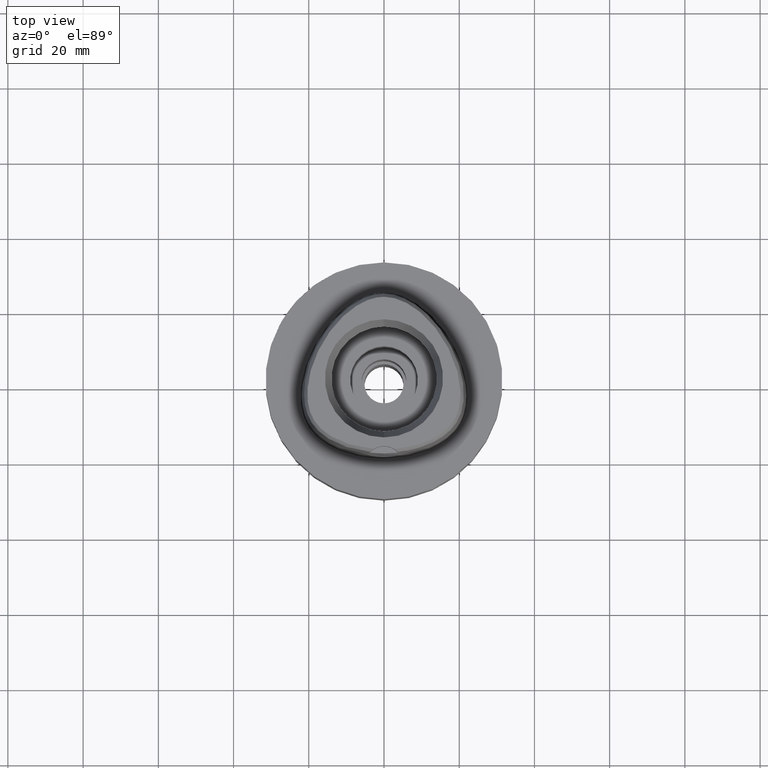
[diagram: clean part render]
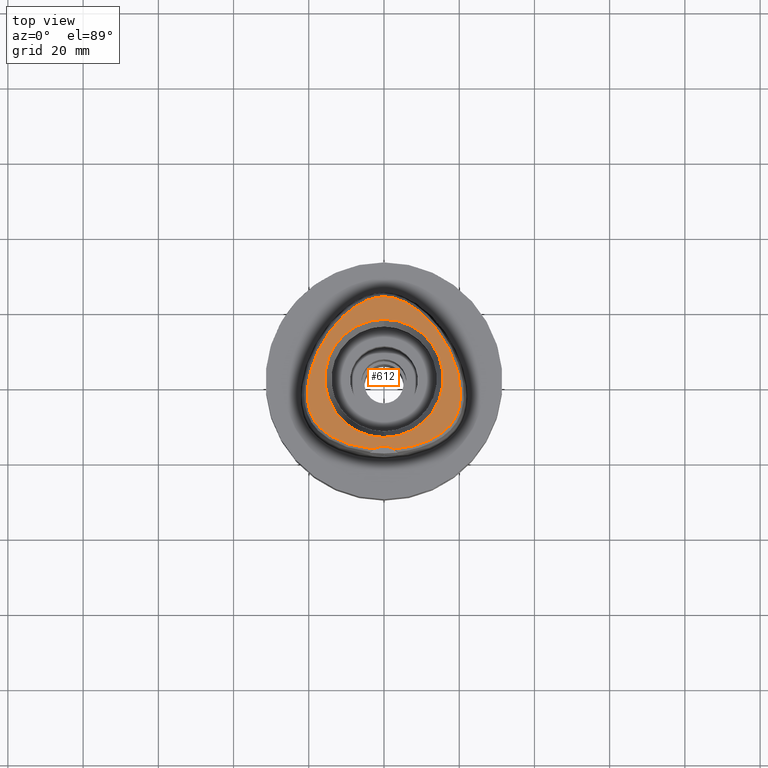
[diagram: same view with one face highlighted and labeled with its STEP entity id]
A machine part, top view. The second image highlights one B-rep face of the part: STEP entity #612.
In plain terms, the highlighted planar face has unit normal (0, 0, 1).
Its self-contained STEP definition (entity closure, byte-faithful):
#41 = CARTESIAN_POINT ( 'NONE',  ( -8.930096025510907864, -17.65000298921759736, 37.99999999999774047 ) ) ;
#67 = CARTESIAN_POINT ( 'NONE',  ( -2.682279906006999948, -18.78035848609999903, 38.00000000000000000 ) ) ;
#96 = CARTESIAN_POINT ( 'NONE',  ( -15.24692477332538765, 11.25717358966142179, 38.00000000000679989 ) ) ;
#122 = CARTESIAN_POINT ( 'NONE',  ( -14.21001600787791652, -15.34519100085744725, 37.99999999999474909 ) ) ;
#131 = CARTESIAN_POINT ( 'NONE',  ( 0.6513209347955690731, 21.67370899611406543, 37.99999999999813127 ) ) ;
#144 = CARTESIAN_POINT ( 'NONE',  ( -18.99520880204494944, -10.46968343926139866, 38.00000000000069633 ) ) ;
#161 = CARTESIAN_POINT ( 'NONE',  ( 15.72078707640431716, -14.29615620309154167, 37.99999999999916156 ) ) ;
#175 = VERTEX_POINT ( 'NONE', #3086 ) ;
#182 = ORIENTED_EDGE ( 'NONE', *, *, #945, .F. ) ;
#190 = CARTESIAN_POINT ( 'NONE',  ( 18.99619228226731593, -10.46780014453539209, 37.99999999999923972 ) ) ;
#211 = CARTESIAN_POINT ( 'NONE',  ( 15.00628712263350373, -14.82385870794631266, 37.99999999999515410 ) ) ;
#236 = CARTESIAN_POINT ( 'NONE',  ( 14.21382211799156892, -15.34284287400479130, 37.99999999999326405 ) ) ;
#314 = AXIS2_PLACEMENT_3D ( 'NONE', #3406, #3433, #1494 ) ;
#356 = FACE_OUTER_BOUND ( 'NONE', #462, .T. ) ;
#369 = DIRECTION ( 'NONE',  ( 0.0000000000000000000, 0.0000000000000000000, 1.000000000000000000 ) ) ;
#438 = CARTESIAN_POINT ( 'NONE',  ( 10.48999540691274568, 16.86597469869752075, 38.00000000000341771 ) ) ;
#450 = CARTESIAN_POINT ( 'NONE',  ( -20.16012968311642339, -1.009698174524109371, 37.99999999999744915 ) ) ;
#462 = EDGE_LOOP ( 'NONE', ( #2656, #182, #3634 ) ) ;
#478 = CARTESIAN_POINT ( 'NONE',  ( -18.79649882724811860, 4.256255933891740284, 37.99999999999412381 ) ) ;
#506 = CARTESIAN_POINT ( 'NONE',  ( -17.91005512244085196, -12.13778127739600166, 37.99999999999760547 ) ) ;
#517 = CARTESIAN_POINT ( 'NONE',  ( 4.255661039972609139, 20.86618068829729822, 37.99999999999337774 ) ) ;
#532 = CARTESIAN_POINT ( 'NONE',  ( -3.522896839653742784, -18.70811514173632517, 37.99999999999671729 ) ) ;
#599 = CARTESIAN_POINT ( 'NONE',  ( 11.32341394162606996, -16.80569392800739692, 37.99999999999507594 ) ) ;
#612 = ADVANCED_FACE ( 'NONE', ( #356, #2665 ), #2592, .T. ) ;
#620 = CARTESIAN_POINT ( 'NONE',  ( -3.470663397110000031E-11, 21.68728795390000030, 38.00000000000000000 ) ) ;
#625 = CARTESIAN_POINT ( 'NONE',  ( 13.33890749495805395, -15.84912955619534003, 37.99999999999752021 ) ) ;
#667 = B_SPLINE_CURVE_WITH_KNOTS ( 'NONE', 3,
 ( #3207, #4768, #131, #2819, #2436, #4718, #3951, #517, #3616, #4377, #4001, #4409, #1675, #2847, #438, #922, #4826, #2472, #4027, #1330, #4901, #999, #4483, #2983, #2169, #1433, #2621, #4179, #4853, #3722, #971, #2573, #4130, #4457, #3003, #4534, #3337, #2927, #1356, #190, #3316, #2551, #1754, #2144, #4110, #4876, #161, #211, #236, #625, #4559, #599, #4930, #674, #1777, #1831, #1408, #4952, #2958, #1377 ),
 .UNSPECIFIED., .F., .F.,
 ( 4, 1, 1, 1, 1, 1, 1, 1, 1, 1, 1, 1, 1, 1, 1, 1, 1, 1, 1, 1, 1, 1, 1, 1, 1, 1, 1, 1, 1, 1, 1, 1, 1, 1, 1, 1, 1, 1, 1, 1, 1, 1, 1, 1, 1, 1, 1, 1, 1, 1, 1, 1, 1, 1, 1, 1, 1, 4 ),
 ( 0.0000000000000000000, 0.01775854187129999318, 0.03551708374169992855, 0.05327562561200005486, 0.07103416748239999023, 0.08879270935270000553, 0.1065512512231000519, 0.1243097930933999562, 0.1420683349638000026, 0.1598268768341000179, 0.1775854187044000332, 0.1953439605747999686, 0.2131025024450999839, 0.2308610443155000302, 0.2486195861857999345, 0.2663781280563000120, 0.2841366699266000273, 0.3018952117970000737, 0.3196537536672999780, 0.3374122955377000244, 0.3551708374080000397, 0.3729293792782999439, 0.3906879211486999903, 0.4084464630190000056, 0.4262050048894000520, 0.4439635467596999563, 0.4617220886301000027, 0.4794806305004000180, 0.4972391723707999533, 0.5149977142410999686, 0.5327562561113999839, 0.5505147979818000303, 0.5682733398521000456, 0.5860318817224999810, 0.6037904235927999963, 0.6215489654632000427, 0.6393075073334999470, 0.6570660492038999934, 0.6748245910742000087, 0.6925831329445000240, 0.7103416748149000703, 0.7281002166851999746, 0.7458587585556000210, 0.7636173004259000363, 0.7813758422962999717, 0.7991343841665999870, 0.8168929260370000334, 0.8346514679073000487, 0.8524100097776999840, 0.8701685516479999993, 0.8879270935183000146, 0.9056856353886799660, 0.9234441772589799813, 0.9412027191293600437, 0.9589612609997000270, 0.9767198028700500023, 0.9944783447403919840, 1.000000000000000000 ),
 .UNSPECIFIED. ) ;
#674 = CARTESIAN_POINT ( 'NONE',  ( 8.936919536467318181, -17.64796721715026351, 38.00000000000019895 ) ) ;
#839 = EDGE_LOOP ( 'NONE', ( #2942, #3538 ) ) ;
#851 = CARTESIAN_POINT ( 'NONE',  ( -20.30498420086798106, -2.177378896257762264, 38.00000000000550671 ) ) ;
#853 = DIRECTION ( 'NONE',  ( 0.0000000000000000000, 0.0000000000000000000, 1.000000000000000000 ) ) ;
#876 = CARTESIAN_POINT ( 'NONE',  ( -16.36032397153883977, -13.76458520345322789, 38.00000000000412825 ) ) ;
#915 = EDGE_CURVE ( 'NONE', #175, #2252, #994, .T. ) ;
#922 = CARTESIAN_POINT ( 'NONE',  ( 11.46587147800438267, 15.92717600803475442, 37.99999999999905498 ) ) ;
#936 = VERTEX_POINT ( 'NONE', #2401 ) ;
#945 = EDGE_CURVE ( 'NONE', #2252, #5041, #3963, .T. ) ;
#961 = CARTESIAN_POINT ( 'NONE',  ( -9.524337278002324325, 17.70558492631704794, 37.99999999999765521 ) ) ;
#971 = CARTESIAN_POINT ( 'NONE',  ( 20.38292172607920349, -3.276278498261274930, 37.99999999999651834 ) ) ;
#994 = CIRCLE ( 'NONE', #4898, 5.000000000000000888 ) ;
#999 = CARTESIAN_POINT ( 'NONE',  ( 16.88599964843188417, 8.518708218769875273, 38.00000000000067502 ) ) ;
#1060 = CARTESIAN_POINT ( 'NONE',  ( -2.735698246183754456, 21.34559102902478500, 37.99999999999833022 ) ) ;
#1134 = CARTESIAN_POINT ( 'NONE',  ( -2.682279906006999948, -18.78035848609999903, 38.00000000000000000 ) ) ;
#1152 = AXIS2_PLACEMENT_3D ( 'NONE', #2879, #4435, #3336 ) ;
#1239 = CARTESIAN_POINT ( 'NONE',  ( -19.98419490692090150, -7.809898894996082142, 37.99999999999906208 ) ) ;
#1289 = CARTESIAN_POINT ( 'NONE',  ( -12.44116897271565669, 14.89128547410070880, 37.99999999999513278 ) ) ;
#1330 = CARTESIAN_POINT ( 'NONE',  ( 15.24661770199307220, 11.25762885477904440, 37.99999999999738520 ) ) ;
#1356 = CARTESIAN_POINT ( 'NONE',  ( 19.28677546797236886, -9.867757137505909881, 37.99999999999716493 ) ) ;
#1377 = CARTESIAN_POINT ( 'NONE',  ( 2.682287482605000051, -18.78036330228999873, 38.00000000000000000 ) ) ;
#1400 = CIRCLE ( 'NONE', #1152, 15.71487483155999776 ) ;
#1408 = CARTESIAN_POINT ( 'NONE',  ( 4.715576077242170427, -18.56597918135498659, 37.99999999999240430 ) ) ;
#1433 = CARTESIAN_POINT ( 'NONE',  ( 19.26272899268694516, 2.870227893749496051, 37.99999999999587885 ) ) ;
#1457 = CARTESIAN_POINT ( 'NONE',  ( 0.0000000000000000000, -15.71487483155999776, 38.00000000000000000 ) ) ;
#1494 = DIRECTION ( 'NONE',  ( 1.000000000000000000, 0.0000000000000000000, 0.0000000000000000000 ) ) ;
#1541 = DIRECTION ( 'NONE',  ( 0.0000000000000000000, 1.000000000000000000, 0.0000000000000000000 ) ) ;
#1607 = CARTESIAN_POINT ( 'NONE',  ( -12.37132652997405913, -16.34104299087807277, 37.99999999999515410 ) ) ;
#1635 = CARTESIAN_POINT ( 'NONE',  ( -15.71788912669207505, -14.29843101565702490, 37.99999999999398170 ) ) ;
#1665 = CARTESIAN_POINT ( 'NONE',  ( -14.34402387965566206, 12.54761970512417335, 37.99999999999892708 ) ) ;
#1675 = CARTESIAN_POINT ( 'NONE',  ( 8.578848111816640198, 18.44609846599379210, 37.99999999999937472 ) ) ;
#1689 = CARTESIAN_POINT ( 'NONE',  ( -19.26324493738795951, 2.868570891457350669, 37.99999999999684519 ) ) ;
#1717 = CARTESIAN_POINT ( 'NONE',  ( -19.78262210840129143, -8.543146992552900443, 38.00000000000207478 ) ) ;
#1743 = CARTESIAN_POINT ( 'NONE',  ( -0.2181979014508848569, 21.68728795389643338, 37.99999999999472067 ) ) ;
#1754 = CARTESIAN_POINT ( 'NONE',  ( 17.91165267838755781, -12.13575389397953153, 38.00000000000365930 ) ) ;
#1777 = CARTESIAN_POINT ( 'NONE',  ( 7.606839420237870186, -18.00827588386046330, 37.99999999999667466 ) ) ;
#1792 = CARTESIAN_POINT ( 'NONE',  ( -4.254559144977783092, 20.86660163697103343, 37.99999999999199929 ) ) ;
#1831 = CARTESIAN_POINT ( 'NONE',  ( 6.196495988003580813, -18.31673538864941975, 37.99999999999690914 ) ) ;
#1870 = EDGE_CURVE ( 'NONE', #936, #2862, #1400, .T. ) ;
#1938 = DIRECTION ( 'NONE',  ( 0.0000000000000000000, -1.000000000000000000, 0.0000000000000000000 ) ) ;
#1965 = CIRCLE ( 'NONE', #4991, 15.71487483155999776 ) ;
#1995 = CARTESIAN_POINT ( 'NONE',  ( -7.599370508971057703, -18.01010694911745702, 38.00000000000226663 ) ) ;
#2018 = CARTESIAN_POINT ( 'NONE',  ( -19.94188961899903134, 0.2242544969878780547, 38.00000000000157030 ) ) ;
#2050 = CARTESIAN_POINT ( 'NONE',  ( -18.24302769442601502, 5.671232572958772700, 37.99999999999607780 ) ) ;
#2078 = CARTESIAN_POINT ( 'NONE',  ( -20.38301517462603840, -3.278344853328045261, 37.99999999999717204 ) ) ;
#2103 = CARTESIAN_POINT ( 'NONE',  ( -18.67608643722038764, -11.03561202291307097, 37.99999999999491251 ) ) ;
#2144 = CARTESIAN_POINT ( 'NONE',  ( 17.45306278053811866, -12.68156296993660881, 37.99999999999705125 ) ) ;
#2169 = CARTESIAN_POINT ( 'NONE',  ( 18.79595068776096412, 4.257753965102049953, 38.00000000000110134 ) ) ;
#2252 = VERTEX_POINT ( 'NONE', #1134 ) ;
#2401 = CARTESIAN_POINT ( 'NONE',  ( 0.0000000000000000000, 15.71487483155999776, 38.00000000000000000 ) ) ;
#2423 = CARTESIAN_POINT ( 'NONE',  ( -18.31748213707128770, -11.58791794387620122, 37.99999999999484857 ) ) ;
#2436 = CARTESIAN_POINT ( 'NONE',  ( 2.018320379028493150, 21.50256508436157432, 37.99999999999724309 ) ) ;
#2472 = CARTESIAN_POINT ( 'NONE',  ( 13.40430406168483479, 13.76274261013158373, 38.00000000000257927 ) ) ;
#2488 = CARTESIAN_POINT ( 'NONE',  ( -6.188376196367171289, -18.31830638231795305, 37.99999999999761258 ) ) ;
#2511 = CARTESIAN_POINT ( 'NONE',  ( -3.470663397110000031E-11, 21.68728795390000030, 38.00000000000000000 ) ) ;
#2551 = CARTESIAN_POINT ( 'NONE',  ( 18.31883910943490079, -11.58595831188194047, 37.99999999999483435 ) ) ;
#2573 = CARTESIAN_POINT ( 'NONE',  ( 20.40062138794532842, -4.309334958867856891, 37.99999999999926104 ) ) ;
#2583 = CARTESIAN_POINT ( 'NONE',  ( -10.48962422759511348, 16.86631853279155635, 38.00000000000418510 ) ) ;
#2592 = PLANE ( 'NONE',  #314 ) ;
#2621 = CARTESIAN_POINT ( 'NONE',  ( 19.64387775268250280, 1.522048414458083920, 37.99999999999614175 ) ) ;
#2656 = ORIENTED_EDGE ( 'NONE', *, *, #3254, .F. ) ;
#2665 = FACE_BOUND ( 'NONE', #839, .T. ) ;
#2706 = CARTESIAN_POINT ( 'NONE',  ( 0.0000000000000000000, 0.0000000000000000000, 38.00000000000000000 ) ) ;
#2756 = CARTESIAN_POINT ( 'NONE',  ( -13.33457781970317413, -15.85148397417461474, 37.99999999999980815 ) ) ;
#2784 = CARTESIAN_POINT ( 'NONE',  ( -20.15090095364766754, -7.024227649787524896, 38.00000000000274980 ) ) ;
#2809 = CARTESIAN_POINT ( 'NONE',  ( -16.93638123745828139, -13.22593246128428390, 37.99999999999440803 ) ) ;
#2813 = CARTESIAN_POINT ( 'NONE',  ( 0.0000000000000000000, -23.00000000000000000, 38.00000000000000000 ) ) ;
#2819 = CARTESIAN_POINT ( 'NONE',  ( 1.325020189552945871, 21.61081414409468593, 37.99999999999479883 ) ) ;
#2847 = CARTESIAN_POINT ( 'NONE',  ( 9.524842839488659507, 17.70516372194882138, 38.00000000000495248 ) ) ;
#2862 = VERTEX_POINT ( 'NONE', #1457 ) ;
#2867 = CARTESIAN_POINT ( 'NONE',  ( -2.841965291530528681, -18.76757795571783660, 37.99999999999863576 ) ) ;
#2879 = CARTESIAN_POINT ( 'NONE',  ( 0.0000000000000000000, 0.0000000000000000000, 38.00000000000000000 ) ) ;
#2927 = CARTESIAN_POINT ( 'NONE',  ( 19.54993126782047952, -9.226212439885893346, 38.00000000000133582 ) ) ;
#2942 = ORIENTED_EDGE ( 'NONE', *, *, #4634, .F. ) ;
#2945 = CARTESIAN_POINT ( 'NONE',  ( -11.46564124494526205, 15.92741340513300763, 37.99999999999345590 ) ) ;
#2958 = CARTESIAN_POINT ( 'NONE',  ( 2.845098933833379640, -18.76733062685940467, 37.99999999999744205 ) ) ;
#2983 = CARTESIAN_POINT ( 'NONE',  ( 18.24247239569566759, 5.672548708072273627, 37.99999999999764100 ) ) ;
#2996 = CARTESIAN_POINT ( 'NONE',  ( -8.578220530113959796, 18.44656747109250006, 38.00000000000049027 ) ) ;
#3003 = CARTESIAN_POINT ( 'NONE',  ( 20.15127154947339605, -7.022178451341176242, 38.00000000000281375 ) ) ;
#3086 = CARTESIAN_POINT ( 'NONE',  ( 2.682287482605000051, -18.78036330228999873, 38.00000000000000000 ) ) ;
#3166 = CARTESIAN_POINT ( 'NONE',  ( -19.28591707037115199, -9.869682450886934078, 37.99999999999617017 ) ) ;
#3207 = CARTESIAN_POINT ( 'NONE',  ( -3.470663397110000031E-11, 21.68728795390000030, 38.00000000000000000 ) ) ;
#3224 = CARTESIAN_POINT ( 'NONE',  ( -13.40435640711719145, 13.76268382997667850, 37.99999999999936762 ) ) ;
#3249 = CARTESIAN_POINT ( 'NONE',  ( -16.09805956313448050, 9.908742513516298089, 38.00000000000363087 ) ) ;
#3254 = EDGE_CURVE ( 'NONE', #5041, #175, #667, .T. ) ;
#3279 = CARTESIAN_POINT ( 'NONE',  ( -1.323674540694249613, 21.61098849315668247, 38.00000000000056843 ) ) ;
#3316 = CARTESIAN_POINT ( 'NONE',  ( 18.67722910598451236, -11.03372143228058633, 37.99999999999961631 ) ) ;
#3327 = CARTESIAN_POINT ( 'NONE',  ( -2.017025177696821991, 21.50280829367613933, 37.99999999999213429 ) ) ;
#3336 = DIRECTION ( 'NONE',  ( 0.0000000000000000000, 1.000000000000000000, 0.0000000000000000000 ) ) ;
#3337 = CARTESIAN_POINT ( 'NONE',  ( 19.78323211892898925, -8.541156231035543556, 37.99999999999580780 ) ) ;
#3406 = CARTESIAN_POINT ( 'NONE',  ( 0.0000000000000000000, 0.0000000000000000000, 38.00000000000000000 ) ) ;
#3433 = DIRECTION ( 'NONE',  ( 0.0000000000000000000, 0.0000000000000000000, 1.000000000000000000 ) ) ;
#3538 = ORIENTED_EDGE ( 'NONE', *, *, #1870, .F. ) ;
#3574 = CARTESIAN_POINT ( 'NONE',  ( -20.40060226222600193, -4.311417605381572926, 37.99999999999871392 ) ) ;
#3608 = CARTESIAN_POINT ( 'NONE',  ( -16.88647904405725342, 8.517821442302912160, 38.00000000000193978 ) ) ;
#3616 = CARTESIAN_POINT ( 'NONE',  ( 5.059249257020485224, 20.53399274679017239, 37.99999999999572964 ) ) ;
#3634 = ORIENTED_EDGE ( 'NONE', *, *, #915, .F. ) ;
#3656 = CARTESIAN_POINT ( 'NONE',  ( -17.60426951086632386, 7.098774535282339038, 37.99999999999279510 ) ) ;
#3722 = CARTESIAN_POINT ( 'NONE',  ( 20.30478359882019390, -2.175347700950720942, 37.99999999999348432 ) ) ;
#3763 = CARTESIAN_POINT ( 'NONE',  ( -5.058220461389487888, 20.53445508814803944, 37.99999999999517541 ) ) ;
#3951 = CARTESIAN_POINT ( 'NONE',  ( 3.482188079159827865, 21.13472718027303898, 37.99999999999917577 ) ) ;
#3962 = CARTESIAN_POINT ( 'NONE',  ( -4.706994425064927157, -18.56721852572938047, 38.00000000000530775 ) ) ;
#3963 = B_SPLINE_CURVE_WITH_KNOTS ( 'NONE', 3,
 ( #67, #2867, #532, #3962, #2488, #1995, #41, #4759, #4040, #1607, #2756, #122, #4015, #1635, #876, #2809, #4425, #506, #2423, #2103, #144, #3166, #4731, #1717, #1239, #2784, #4347, #4316, #3574, #2078, #851, #450, #2018, #3984, #1689, #478, #2050, #3656, #3608, #3249, #96, #1665, #3224, #1289, #2945, #2583, #961, #2996, #4887, #4865, #4546, #3763, #1792, #4840, #1060, #3327, #3279, #4523, #1743, #2511 ),
 .UNSPECIFIED., .F., .F.,
 ( 4, 1, 1, 1, 1, 1, 1, 1, 1, 1, 1, 1, 1, 1, 1, 1, 1, 1, 1, 1, 1, 1, 1, 1, 1, 1, 1, 1, 1, 1, 1, 1, 1, 1, 1, 1, 1, 1, 1, 1, 1, 1, 1, 1, 1, 1, 1, 1, 1, 1, 1, 1, 1, 1, 1, 1, 1, 4 ),
 ( 0.0000000000000000000, 0.005420919554200098744, 0.02318126027639999531, 0.04094160099879995407, 0.05870194172099996166, 0.07646228244330000035, 0.09422262316550000794, 0.1119829638877999356, 0.1297433046099999432, 0.1475036453321999508, 0.1652639860544999895, 0.1830243267768000281, 0.2007846674991000668, 0.2185450082212999634, 0.2363053489436000021, 0.2540656896658000097, 0.2718260303881000484, 0.2895863711103000560, 0.3073467118325999836, 0.3251070525547999912, 0.3428673932771000299, 0.3606277339994000686, 0.3783880747216000762, 0.3961484154438998928, 0.4139087561661000114, 0.4316690968884000501, 0.4494294376106000577, 0.4671897783328999854, 0.4849501190552000240, 0.5027104597774000316, 0.5204708004996999593, 0.5382311412219000779, 0.5559914819442000056, 0.5737518226664000132, 0.5915121633886999408, 0.6092725041108999484, 0.6270328448331999871, 0.6447931855555000258, 0.6625535262777000334, 0.6803138669999999610, 0.6980742077221999686, 0.7158345484445000073, 0.7335948891667000149, 0.7513552298890000536, 0.7691155706112000612, 0.7868759113336000199, 0.8046362520558000275, 0.8223965927780999552, 0.8401569335002999628, 0.8579172742224999704, 0.8756776149448000091, 0.8934379556670000166, 0.9111982963893099363, 0.9289586371115700070, 0.9467189778338299666, 0.9644793185560800453, 0.9822396592783400049, 1.000000000000000000 ),
 .UNSPECIFIED. ) ;
#3984 = CARTESIAN_POINT ( 'NONE',  ( -19.64434054693510490, 1.520253387635991604, 37.99999999999598543 ) ) ;
#4001 = CARTESIAN_POINT ( 'NONE',  ( 6.760281394350856843, 19.65404668909395625, 37.99999999999729283 ) ) ;
#4015 = CARTESIAN_POINT ( 'NONE',  ( -15.00295592774081754, -14.82617991125786894, 38.00000000000009237 ) ) ;
#4027 = CARTESIAN_POINT ( 'NONE',  ( 14.34383722811637085, 12.54786717290514986, 37.99999999999396749 ) ) ;
#4040 = CARTESIAN_POINT ( 'NONE',  ( -11.31790883120937430, -16.80796958613826320, 37.99999999999565858 ) ) ;
#4110 = CARTESIAN_POINT ( 'NONE',  ( 16.93855157777940690, -13.22377441789527452, 37.99999999999229061 ) ) ;
#4130 = CARTESIAN_POINT ( 'NONE',  ( 20.36412151361040657, -5.276385427453960553, 38.00000000000282085 ) ) ;
#4179 = CARTESIAN_POINT ( 'NONE',  ( 19.94150023628101920, 0.2261566111945229329, 37.99999999999960920 ) ) ;
#4316 = CARTESIAN_POINT ( 'NONE',  ( -20.36398648679754331, -5.278470727085563752, 37.99999999999817391 ) ) ;
#4347 = CARTESIAN_POINT ( 'NONE',  ( -20.27898581532236477, -6.181921586190217255, 37.99999999999840128 ) ) ;
#4377 = CARTESIAN_POINT ( 'NONE',  ( 5.894487344450477728, 20.13186406532081207, 37.99999999999812417 ) ) ;
#4409 = CARTESIAN_POINT ( 'NONE',  ( 7.655962789343320196, 19.09402979099712638, 38.00000000000028422 ) ) ;
#4425 = CARTESIAN_POINT ( 'NONE',  ( -17.45119705493962670, -12.68365517585449531, 37.99999999999791100 ) ) ;
#4435 = DIRECTION ( 'NONE',  ( 0.0000000000000000000, 0.0000000000000000000, 1.000000000000000000 ) ) ;
#4457 = CARTESIAN_POINT ( 'NONE',  ( 20.27923816685478187, -6.179850483268554129, 38.00000000000470379 ) ) ;
#4483 = CARTESIAN_POINT ( 'NONE',  ( 17.60373714028545677, 7.099883643193112270, 37.99999999999334221 ) ) ;
#4523 = CARTESIAN_POINT ( 'NONE',  ( -0.6498990081535453989, 21.67378274708607933, 37.99999999999032951 ) ) ;
#4534 = CARTESIAN_POINT ( 'NONE',  ( 19.98468477323122627, -7.807876343103396621, 37.99999999999904787 ) ) ;
#4546 = CARTESIAN_POINT ( 'NONE',  ( -5.893543501601597789, 20.13235399352345567, 38.00000000000303402 ) ) ;
#4559 = CARTESIAN_POINT ( 'NONE',  ( 12.37622418509536182, -16.33871033286227004, 37.99999999999569411 ) ) ;
#4634 = EDGE_CURVE ( 'NONE', #2862, #936, #1965, .T. ) ;
#4718 = CARTESIAN_POINT ( 'NONE',  ( 2.736932690726950668, 21.34527940056758055, 37.99999999999641886 ) ) ;
#4731 = CARTESIAN_POINT ( 'NONE',  ( -19.54919922642049812, -9.228169790569065611, 38.00000000000292033 ) ) ;
#4759 = CARTESIAN_POINT ( 'NONE',  ( -10.17136073855103717, -17.24644253470417965, 38.00000000000223821 ) ) ;
#4768 = CARTESIAN_POINT ( 'NONE',  ( 0.2185816947241205621, 21.68728795389963082, 38.00000000000132161 ) ) ;
#4826 = CARTESIAN_POINT ( 'NONE',  ( 12.44125753246735577, 14.89118158853533558, 37.99999999999771205 ) ) ;
#4840 = CARTESIAN_POINT ( 'NONE',  ( -3.481017203589459097, 21.13509756881830981, 37.99999999999726441 ) ) ;
#4853 = CARTESIAN_POINT ( 'NONE',  ( 20.15982952132183215, -1.007721426051368052, 37.99999999999823075 ) ) ;
#4865 = CARTESIAN_POINT ( 'NONE',  ( -6.759433772717868827, 19.65454812513233662, 37.99999999999184297 ) ) ;
#4876 = CARTESIAN_POINT ( 'NONE',  ( 16.36283630828707558, -13.76236604535142227, 38.00000000000282796 ) ) ;
#4887 = CARTESIAN_POINT ( 'NONE',  ( -7.655222869372959593, 19.09452359226251872, 37.99999999999366196 ) ) ;
#4898 = AXIS2_PLACEMENT_3D ( 'NONE', #2813, #853, #1541 ) ;
#4901 = CARTESIAN_POINT ( 'NONE',  ( 16.09765529146638841, 9.909410920133385758, 37.99999999999005240 ) ) ;
#4930 = CARTESIAN_POINT ( 'NONE',  ( 10.17751632998063371, -17.24426134458614968, 37.99999999999594991 ) ) ;
#4952 = CARTESIAN_POINT ( 'NONE',  ( 3.529311563348180858, -18.70747079909805066, 37.99999999999646860 ) ) ;
#4991 = AXIS2_PLACEMENT_3D ( 'NONE', #2706, #369, #1938 ) ;
#5041 = VERTEX_POINT ( 'NONE', #620 ) ;